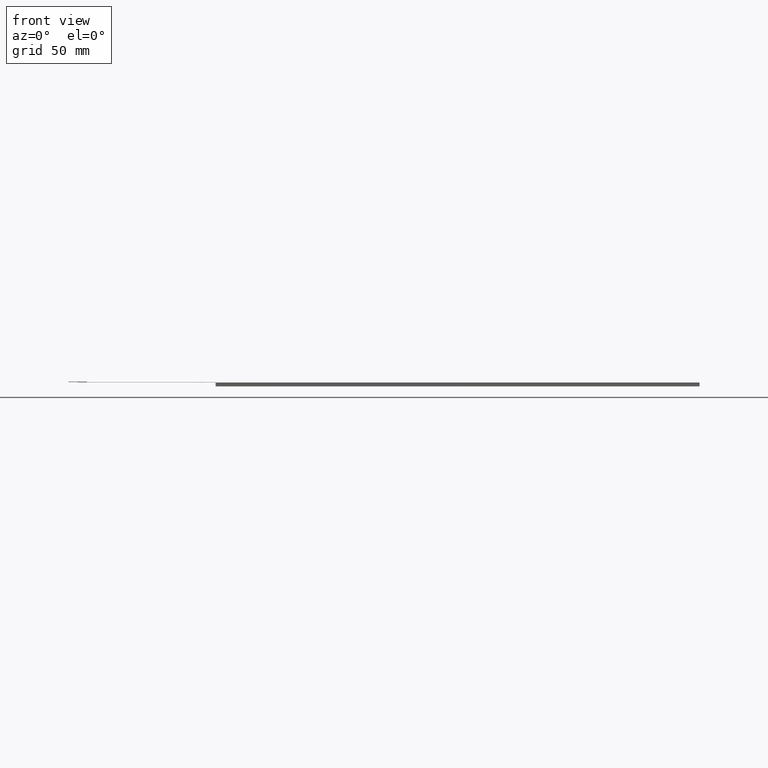
[diagram: clean part render]
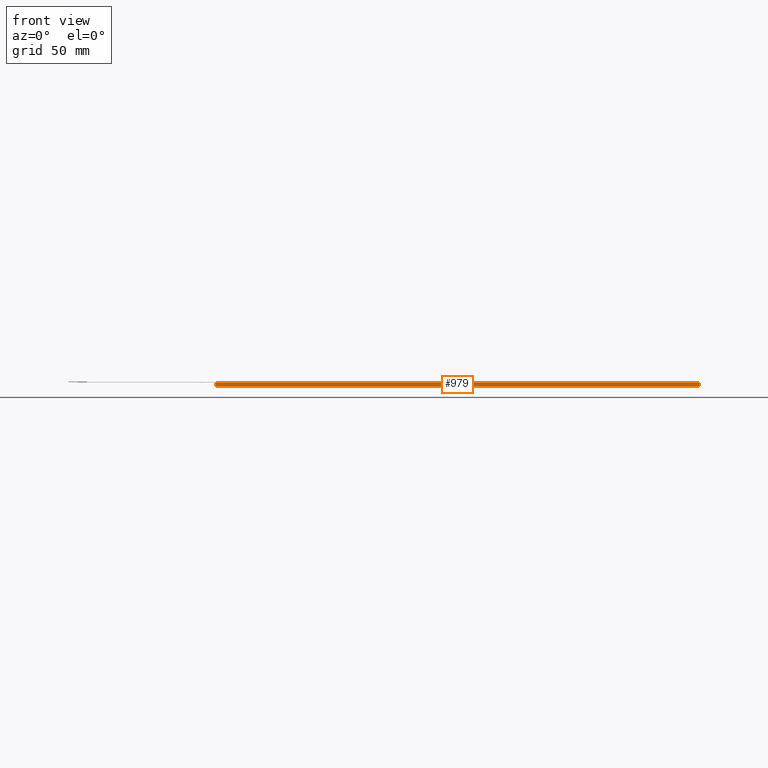
[diagram: same view with one face highlighted and labeled with its STEP entity id]
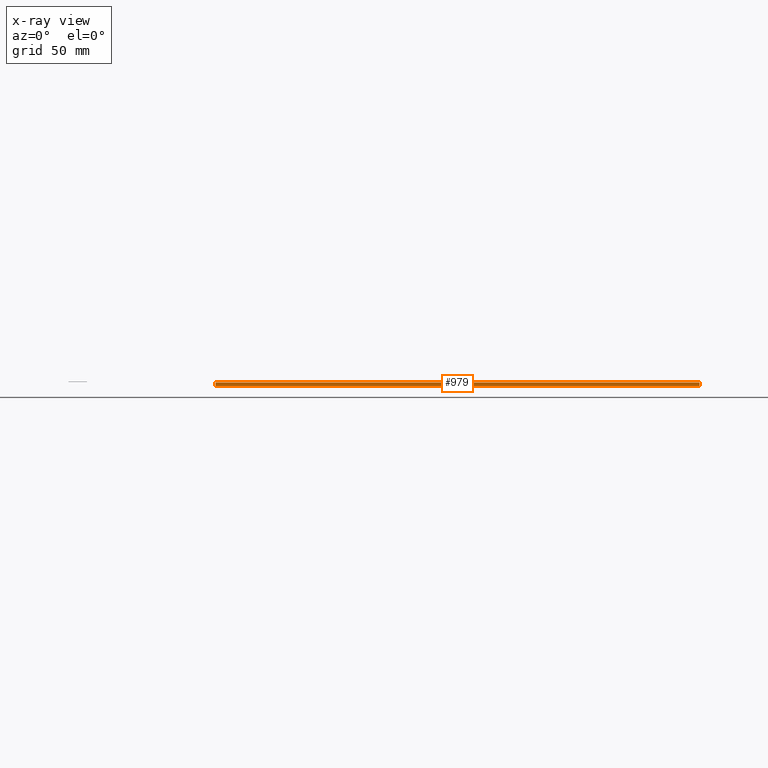
[diagram: x-ray of the same camera — body ghosted, the highlighted face saturated]
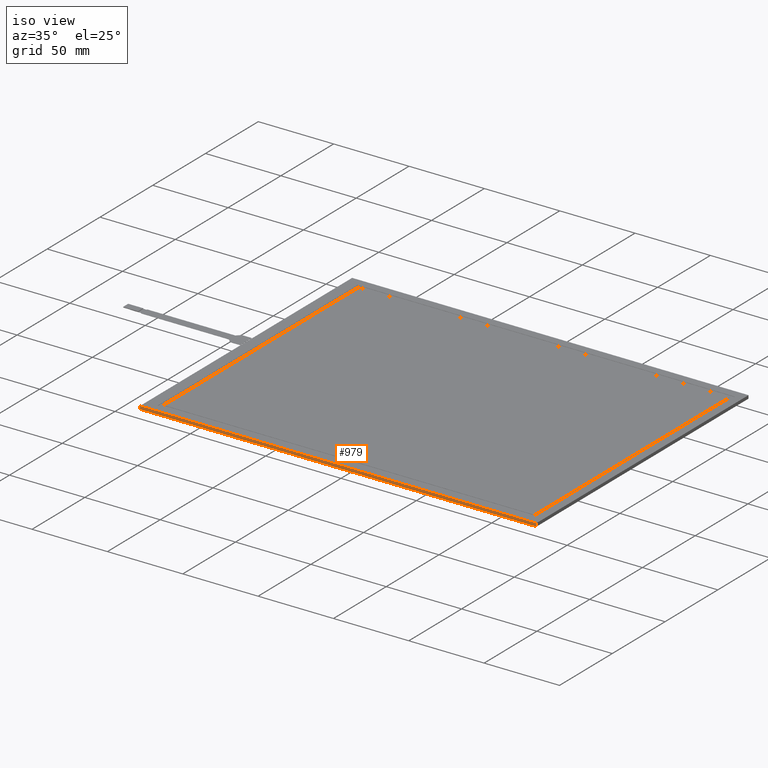
[diagram: same view with one face highlighted and labeled with its STEP entity id]
A machine part, front view. The second image highlights one B-rep face of the part: STEP entity #979.
The next image is the same camera in x-ray: the body ghosted, the highlighted face saturated — about 0% of this face is hidden behind the body in this view.
A second angle (iso view) of the same face is appended — the face is thin or edge-on in the first view.
In plain terms, the highlighted planar face has unit normal (0, -1, 0).
Its self-contained STEP definition (entity closure, byte-faithful):
#69=FACE_OUTER_BOUND('',#123,.T.);
#123=EDGE_LOOP('',(#698,#699,#700,#701));
#190=LINE('',#1418,#316);
#194=LINE('',#1425,#320);
#195=LINE('',#1428,#321);
#196=LINE('',#1429,#322);
#316=VECTOR('',#1153,10.);
#320=VECTOR('',#1159,10.);
#321=VECTOR('',#1162,10.);
#322=VECTOR('',#1163,10.);
#434=VERTEX_POINT('',#1415);
#435=VERTEX_POINT('',#1417);
#437=VERTEX_POINT('',#1423);
#438=VERTEX_POINT('',#1427);
#534=EDGE_CURVE('',#434,#435,#190,.T.);
#538=EDGE_CURVE('',#434,#437,#194,.T.);
#539=EDGE_CURVE('',#438,#437,#195,.T.);
#540=EDGE_CURVE('',#435,#438,#196,.T.);
#698=ORIENTED_EDGE('',*,*,#534,.F.);
#699=ORIENTED_EDGE('',*,*,#538,.T.);
#700=ORIENTED_EDGE('',*,*,#539,.F.);
#701=ORIENTED_EDGE('',*,*,#540,.F.);
#933=PLANE('',#1052);
#979=ADVANCED_FACE('',(#69),#933,.T.);
#1052=AXIS2_PLACEMENT_3D('',#1426,#1160,#1161);
#1153=DIRECTION('',(1.,1.35084170296597E-16,0.));
#1159=DIRECTION('',(0.,0.,-1.));
#1160=DIRECTION('center_axis',(1.35084170296597E-16,-1.,0.));
#1161=DIRECTION('ref_axis',(-1.,-1.35084170296597E-16,0.));
#1162=DIRECTION('',(-1.,-1.35084170296597E-16,0.));
#1163=DIRECTION('',(0.,0.,-1.));
#1415=CARTESIAN_POINT('',(-133.,-100.5,0.));
#1417=CARTESIAN_POINT('',(130.,-100.5,0.));
#1418=CARTESIAN_POINT('',(-133.,-100.5,0.));
#1423=CARTESIAN_POINT('',(-133.,-100.5,-2.1));
#1425=CARTESIAN_POINT('',(-133.,-100.5,0.));
#1426=CARTESIAN_POINT('Origin',(130.,-100.5,0.));
#1427=CARTESIAN_POINT('',(130.,-100.5,-2.1));
#1428=CARTESIAN_POINT('',(-133.,-100.5,-2.1));
#1429=CARTESIAN_POINT('',(130.,-100.5,0.));